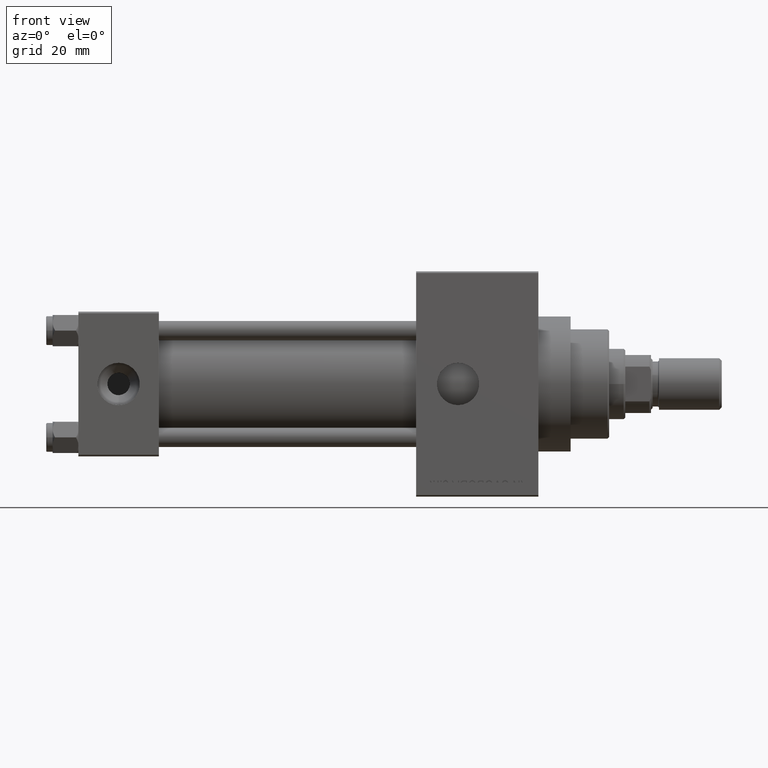
[diagram: clean part render]
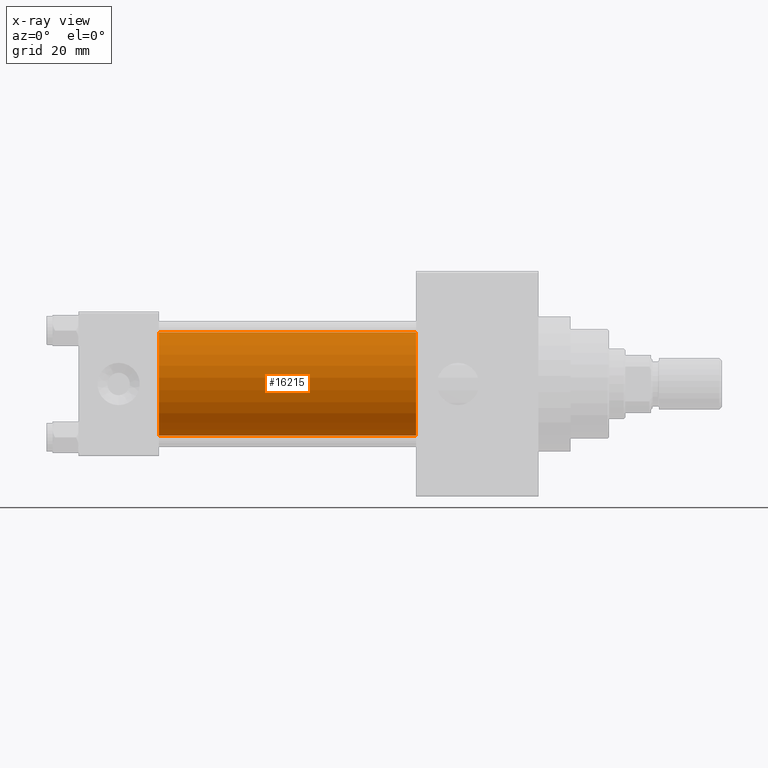
[diagram: x-ray — body ghosted, one internal face saturated and labeled with its STEP entity id]
A machine part, front view, then the same camera in x-ray: the body is ghosted and one INTERNAL B-rep face — a face not visible from any outside direction — is saturated and labeled: STEP entity #16215.
In plain terms, the highlighted cylindrical surface (partial cylindrical patch) has radius 16 mm, axis along (-1, -0, -0).
Its self-contained STEP definition (entity closure, byte-faithful):
#283 = CARTESIAN_POINT ( 'NONE',  ( 105.0000000000000142, -2.602085213965210642E-15, 16.00000000000000000 ) ) ;
#558 = VECTOR ( 'NONE', #42568, 1000.000000000000000 ) ;
#2661 = CIRCLE ( 'NONE', #22638, 16.00000000000000000 ) ;
#3266 = VERTEX_POINT ( 'NONE', #38687 ) ;
#3304 = CARTESIAN_POINT ( 'NONE',  ( 25.00000000000000000, -6.426503353294456087E-16, -16.00000000000000000 ) ) ;
#4707 = DIRECTION ( 'NONE',  ( 0.000000000000000000, 0.000000000000000000, -1.000000000000000000 ) ) ;
#5186 = EDGE_CURVE ( 'NONE', #20640, #6554, #27840, .T. ) ;
#5708 = CARTESIAN_POINT ( 'NONE',  ( 105.0000000000000142, -2.602085213965210642E-15, 0.000000000000000000 ) ) ;
#6554 = VERTEX_POINT ( 'NONE', #3304 ) ;
#7684 = CARTESIAN_POINT ( 'NONE',  ( 105.0000000000000142, -2.602085213965210642E-15, 0.000000000000000000 ) ) ;
#8064 = DIRECTION ( 'NONE',  ( 1.000000000000000000, 0.000000000000000000, 0.000000000000000000 ) ) ;
#8829 = DIRECTION ( 'NONE',  ( -1.000000000000000000, -0.000000000000000000, -0.000000000000000000 ) ) ;
#8895 = CIRCLE ( 'NONE', #48085, 16.00000000000000000 ) ;
#8959 = VERTEX_POINT ( 'NONE', #283 ) ;
#11514 = LINE ( 'NONE', #34547, #558 ) ;
#15295 = EDGE_CURVE ( 'NONE', #8959, #20640, #8895, .T. ) ;
#16215 = ADVANCED_FACE ( 'NONE', ( #41489 ), #49507, .F. ) ;
#16599 = ORIENTED_EDGE ( 'NONE', *, *, #15295, .T. ) ;
#16968 = DIRECTION ( 'NONE',  ( 1.000000000000000000, 0.000000000000000000, 0.000000000000000000 ) ) ;
#16993 = CARTESIAN_POINT ( 'NONE',  ( 105.0000000000000142, -6.426503353294456087E-16, -16.00000000000000000 ) ) ;
#17843 = ORIENTED_EDGE ( 'NONE', *, *, #5186, .T. ) ;
#18207 = VECTOR ( 'NONE', #8829, 1000.000000000000000 ) ;
#19118 = ORIENTED_EDGE ( 'NONE', *, *, #30912, .F. ) ;
#19858 = EDGE_LOOP ( 'NONE', ( #16599, #17843, #19118, #38098 ) ) ;
#20051 = DIRECTION ( 'NONE',  ( 0.000000000000000000, 0.000000000000000000, -1.000000000000000000 ) ) ;
#20640 = VERTEX_POINT ( 'NONE', #16993 ) ;
#22638 = AXIS2_PLACEMENT_3D ( 'NONE', #38854, #8064, #20051 ) ;
#25654 = AXIS2_PLACEMENT_3D ( 'NONE', #7684, #30944, #37735 ) ;
#27840 = LINE ( 'NONE', #43139, #18207 ) ;
#30912 = EDGE_CURVE ( 'NONE', #3266, #6554, #2661, .T. ) ;
#30944 = DIRECTION ( 'NONE',  ( -1.000000000000000000, -0.000000000000000000, -0.000000000000000000 ) ) ;
#34547 = CARTESIAN_POINT ( 'NONE',  ( 105.0000000000000142, -2.602085213965210642E-15, 16.00000000000000000 ) ) ;
#37735 = DIRECTION ( 'NONE',  ( 0.000000000000000000, 0.000000000000000000, 1.000000000000000000 ) ) ;
#38098 = ORIENTED_EDGE ( 'NONE', *, *, #46534, .F. ) ;
#38687 = CARTESIAN_POINT ( 'NONE',  ( 25.00000000000000000, -2.602085213965210642E-15, 16.00000000000000000 ) ) ;
#38854 = CARTESIAN_POINT ( 'NONE',  ( 25.00000000000000000, -2.602085213965210642E-15, 0.000000000000000000 ) ) ;
#41489 = FACE_OUTER_BOUND ( 'NONE', #19858, .T. ) ;
#42568 = DIRECTION ( 'NONE',  ( -1.000000000000000000, -0.000000000000000000, -0.000000000000000000 ) ) ;
#43139 = CARTESIAN_POINT ( 'NONE',  ( 105.0000000000000142, -6.426503353294456087E-16, -16.00000000000000000 ) ) ;
#46534 = EDGE_CURVE ( 'NONE', #8959, #3266, #11514, .T. ) ;
#48085 = AXIS2_PLACEMENT_3D ( 'NONE', #5708, #16968, #4707 ) ;
#49507 = CYLINDRICAL_SURFACE ( 'NONE', #25654, 16.00000000000000000 ) ;